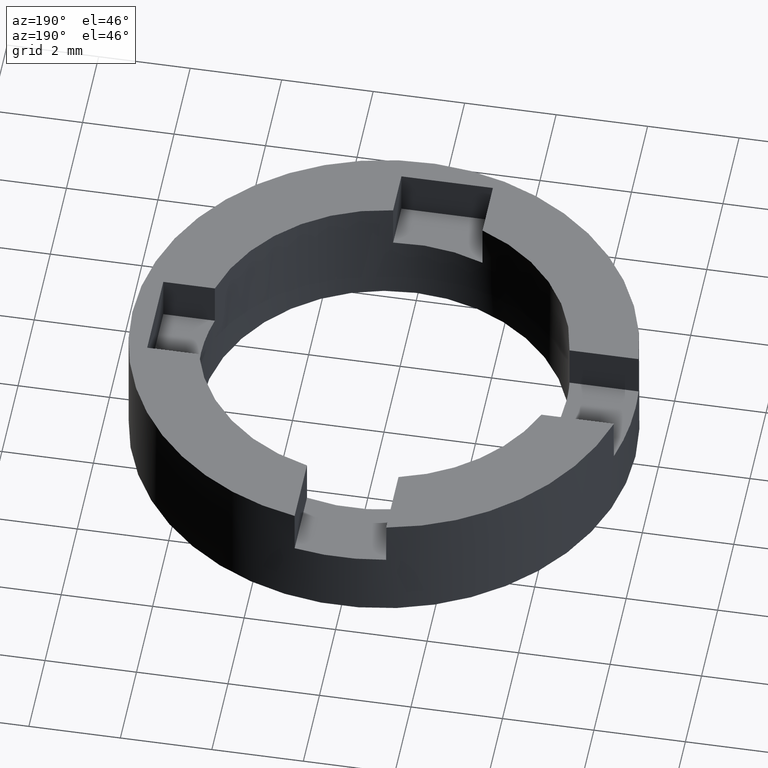
[diagram: clean part render]
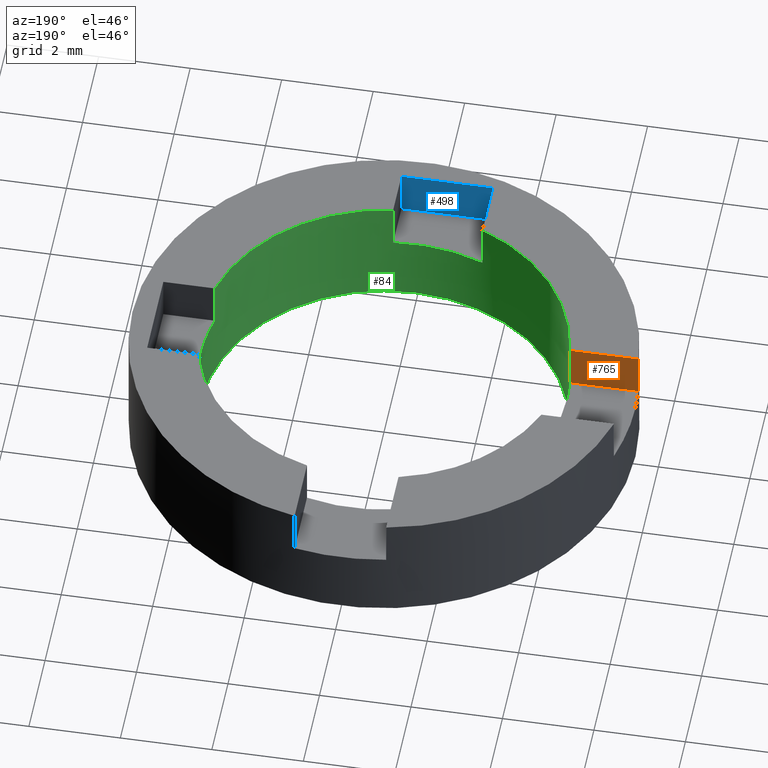
[diagram: same view with three faces highlighted in distinct colors, each labeled with its STEP entity id]
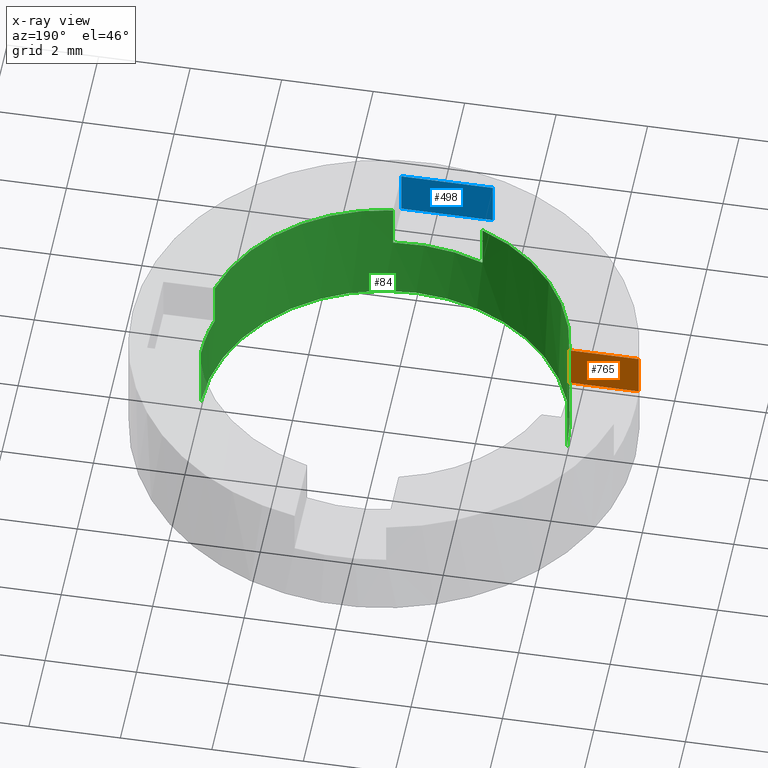
[diagram: x-ray of the same camera — body ghosted, the three highlighted faces saturated]
A machine part, auxiliary view with three faces highlighted in distinct colors.
The next image is the same camera in x-ray (body ghosted, the three faces saturated) — at least one of them is partly hidden behind the body in this view.
Their STEP definitions:

[orange] entity #765 — the highlighted planar face has unit normal (0, -1, 0).
#7 = LINE ( 'NONE', #28, #11 ) ;
#8 = ORIENTED_EDGE ( 'NONE', *, *, #112, .F. ) ;
#11 = VECTOR ( 'NONE', #257, 1000.000000000000000 ) ;
#13 = LINE ( 'NONE', #204, #512 ) ;
#28 = CARTESIAN_POINT ( 'NONE',  ( -5.477225575051632767, -0.5000000000003046452, 2.500000000000000000 ) ) ;
#41 = CARTESIAN_POINT ( 'NONE',  ( -5.477225575051632767, -0.5000000000003046452, 1.500000000000000000 ) ) ;
#45 = ORIENTED_EDGE ( 'NONE', *, *, #296, .F. ) ;
#50 = AXIS2_PLACEMENT_3D ( 'NONE', #529, #214, #487 ) ;
#51 = CARTESIAN_POINT ( 'NONE',  ( -3.968626966596846994, -0.5000000000003044232, 2.500000000000000000 ) ) ;
#112 = EDGE_CURVE ( 'NONE', #243, #486, #7, .T. ) ;
#140 = EDGE_CURVE ( 'NONE', #243, #190, #13, .T. ) ;
#153 = LINE ( 'NONE', #51, #689 ) ;
#190 = VERTEX_POINT ( 'NONE', #423 ) ;
#204 = CARTESIAN_POINT ( 'NONE',  ( -3.305037895305851681, -0.5000000000003044232, 2.500000000000000000 ) ) ;
#212 = VERTEX_POINT ( 'NONE', #451 ) ;
#214 = DIRECTION ( 'NONE',  ( 1.481850875921982612E-16, -1.000000000000000000, 0.000000000000000000 ) ) ;
#243 = VERTEX_POINT ( 'NONE', #416 ) ;
#249 = EDGE_LOOP ( 'NONE', ( #450, #706, #45, #8 ) ) ;
#257 = DIRECTION ( 'NONE',  ( -0.000000000000000000, -0.000000000000000000, -1.000000000000000000 ) ) ;
#296 = EDGE_CURVE ( 'NONE', #486, #212, #365, .T. ) ;
#365 = LINE ( 'NONE', #712, #630 ) ;
#387 = EDGE_CURVE ( 'NONE', #190, #212, #153, .T. ) ;
#416 = CARTESIAN_POINT ( 'NONE',  ( -5.477225575051632767, -0.5000000000003046452, 2.500000000000000000 ) ) ;
#423 = CARTESIAN_POINT ( 'NONE',  ( -3.968626966596846994, -0.5000000000003044232, 2.500000000000000000 ) ) ;
#449 = FACE_OUTER_BOUND ( 'NONE', #249, .T. ) ;
#450 = ORIENTED_EDGE ( 'NONE', *, *, #140, .T. ) ;
#451 = CARTESIAN_POINT ( 'NONE',  ( -3.968626966596846994, -0.5000000000003044232, 1.500000000000000000 ) ) ;
#486 = VERTEX_POINT ( 'NONE', #41 ) ;
#487 = DIRECTION ( 'NONE',  ( 1.000000000000000000, 1.481850875921982612E-16, 0.000000000000000000 ) ) ;
#512 = VECTOR ( 'NONE', #777, 1000.000000000000000 ) ;
#529 = CARTESIAN_POINT ( 'NONE',  ( -3.305037895305851681, -0.5000000000003044232, 1.500000000000000000 ) ) ;
#617 = PLANE ( 'NONE',  #50 ) ;
#630 = VECTOR ( 'NONE', #661, 1000.000000000000000 ) ;
#661 = DIRECTION ( 'NONE',  ( 1.000000000000000000, 1.481850875921982612E-16, -0.000000000000000000 ) ) ;
#667 = DIRECTION ( 'NONE',  ( -0.000000000000000000, -0.000000000000000000, -1.000000000000000000 ) ) ;
#689 = VECTOR ( 'NONE', #667, 1000.000000000000000 ) ;
#706 = ORIENTED_EDGE ( 'NONE', *, *, #387, .T. ) ;
#712 = CARTESIAN_POINT ( 'NONE',  ( -3.305037895305851681, -0.5000000000003044232, 1.500000000000000000 ) ) ;
#765 = ADVANCED_FACE ( 'NONE', ( #449 ), #617, .F. ) ;
#777 = DIRECTION ( 'NONE',  ( 1.000000000000000000, 1.481850875921982612E-16, -0.000000000000000000 ) ) ;

[blue] entity #498 — the highlighted planar face has unit normal (0, -1, 0).
#71 = CARTESIAN_POINT ( 'NONE',  ( -1.499999999999649614, -5.000000000000257572, 2.500000000000000000 ) ) ;
#77 = EDGE_CURVE ( 'NONE', #195, #307, #79, .T. ) ;
#79 = LINE ( 'NONE', #655, #81 ) ;
#81 = VECTOR ( 'NONE', #547, 1000.000000000000000 ) ;
#93 = DIRECTION ( 'NONE',  ( 0.000000000000000000, -0.000000000000000000, -1.000000000000000000 ) ) ;
#116 = LINE ( 'NONE', #592, #117 ) ;
#117 = VECTOR ( 'NONE', #643, 1000.000000000000000 ) ;
#134 = PLANE ( 'NONE',  #318 ) ;
#139 = CARTESIAN_POINT ( 'NONE',  ( 0.5000000000003504974, -5.000000000000257572, 1.500000000000000000 ) ) ;
#159 = LINE ( 'NONE', #139, #695 ) ;
#192 = DIRECTION ( 'NONE',  ( 0.000000000000000000, -1.000000000000000000, 0.000000000000000000 ) ) ;
#195 = VERTEX_POINT ( 'NONE', #647 ) ;
#265 = CARTESIAN_POINT ( 'NONE',  ( 0.5000000000003504974, -5.000000000000257572, 1.500000000000000000 ) ) ;
#307 = VERTEX_POINT ( 'NONE', #71 ) ;
#316 = EDGE_CURVE ( 'NONE', #195, #553, #116, .T. ) ;
#318 = AXIS2_PLACEMENT_3D ( 'NONE', #665, #192, #93 ) ;
#328 = CARTESIAN_POINT ( 'NONE',  ( -1.499999999999649614, -5.000000000000257572, 2.500000000000000000 ) ) ;
#372 = DIRECTION ( 'NONE',  ( 1.000000000000000000, 0.000000000000000000, 0.000000000000000000 ) ) ;
#392 = EDGE_CURVE ( 'NONE', #307, #475, #405, .T. ) ;
#405 = LINE ( 'NONE', #328, #687 ) ;
#453 = EDGE_CURVE ( 'NONE', #553, #475, #159, .T. ) ;
#460 = EDGE_LOOP ( 'NONE', ( #717, #570, #748, #462 ) ) ;
#462 = ORIENTED_EDGE ( 'NONE', *, *, #77, .T. ) ;
#475 = VERTEX_POINT ( 'NONE', #577 ) ;
#498 = ADVANCED_FACE ( 'NONE', ( #696 ), #134, .F. ) ;
#547 = DIRECTION ( 'NONE',  ( -0.000000000000000000, -0.000000000000000000, 1.000000000000000000 ) ) ;
#553 = VERTEX_POINT ( 'NONE', #265 ) ;
#570 = ORIENTED_EDGE ( 'NONE', *, *, #453, .F. ) ;
#577 = CARTESIAN_POINT ( 'NONE',  ( 0.5000000000003504974, -5.000000000000257572, 2.500000000000000000 ) ) ;
#592 = CARTESIAN_POINT ( 'NONE',  ( -1.499999999999649614, -5.000000000000257572, 1.500000000000000000 ) ) ;
#643 = DIRECTION ( 'NONE',  ( 1.000000000000000000, 0.000000000000000000, 0.000000000000000000 ) ) ;
#647 = CARTESIAN_POINT ( 'NONE',  ( -1.499999999999649614, -5.000000000000257572, 1.500000000000000000 ) ) ;
#655 = CARTESIAN_POINT ( 'NONE',  ( -1.499999999999649614, -5.000000000000257572, 1.500000000000000000 ) ) ;
#665 = CARTESIAN_POINT ( 'NONE',  ( -1.499999999999649614, -5.000000000000257572, 1.500000000000000000 ) ) ;
#687 = VECTOR ( 'NONE', #372, 1000.000000000000000 ) ;
#695 = VECTOR ( 'NONE', #756, 1000.000000000000000 ) ;
#696 = FACE_OUTER_BOUND ( 'NONE', #460, .T. ) ;
#717 = ORIENTED_EDGE ( 'NONE', *, *, #392, .T. ) ;
#748 = ORIENTED_EDGE ( 'NONE', *, *, #316, .F. ) ;
#756 = DIRECTION ( 'NONE',  ( -0.000000000000000000, -0.000000000000000000, 1.000000000000000000 ) ) ;

[green] entity #84 — the highlighted cylindrical surface (partial cylindrical patch) has radius 4 mm, axis along (-0, -0, -1).
#1 = CARTESIAN_POINT ( 'NONE',  ( 0.5000000000003502754, -3.968626966596842109, 1.500000000000000000 ) ) ;
#6 = VERTEX_POINT ( 'NONE', #644 ) ;
#14 = DIRECTION ( 'NONE',  ( 0.000000000000000000, 0.000000000000000000, -1.000000000000000000 ) ) ;
#16 = CYLINDRICAL_SURFACE ( 'NONE', #267, 4.000000000000000000 ) ;
#29 = AXIS2_PLACEMENT_3D ( 'NONE', #327, #406, #573 ) ;
#31 = CARTESIAN_POINT ( 'NONE',  ( 3.872983346207428568, -0.9999999999999542588, 2.500000000000000000 ) ) ;
#35 = ORIENTED_EDGE ( 'NONE', *, *, #621, .F. ) ;
#48 = ORIENTED_EDGE ( 'NONE', *, *, #147, .F. ) ;
#51 = CARTESIAN_POINT ( 'NONE',  ( -3.968626966596846994, -0.5000000000003044232, 2.500000000000000000 ) ) ;
#73 = DIRECTION ( 'NONE',  ( 0.000000000000000000, 0.000000000000000000, 1.000000000000000000 ) ) ;
#84 = ADVANCED_FACE ( 'NONE', ( #518 ), #16, .F. ) ;
#85 = DIRECTION ( 'NONE',  ( -0.000000000000000000, -0.000000000000000000, -1.000000000000000000 ) ) ;
#86 = DIRECTION ( 'NONE',  ( 1.000000000000000000, 0.000000000000000000, 0.000000000000000000 ) ) ;
#102 = CARTESIAN_POINT ( 'NONE',  ( -1.499999999999649614, -3.708099243547972712, 2.500000000000000000 ) ) ;
#115 = EDGE_CURVE ( 'NONE', #508, #768, #252, .T. ) ;
#147 = EDGE_CURVE ( 'NONE', #768, #426, #247, .T. ) ;
#153 = LINE ( 'NONE', #51, #689 ) ;
#167 = VECTOR ( 'NONE', #527, 1000.000000000000000 ) ;
#168 = LINE ( 'NONE', #262, #713 ) ;
#178 = ORIENTED_EDGE ( 'NONE', *, *, #269, .T. ) ;
#187 = LINE ( 'NONE', #266, #167 ) ;
#190 = VERTEX_POINT ( 'NONE', #423 ) ;
#197 = ORIENTED_EDGE ( 'NONE', *, *, #583, .T. ) ;
#206 = VERTEX_POINT ( 'NONE', #341 ) ;
#212 = VERTEX_POINT ( 'NONE', #451 ) ;
#223 = EDGE_CURVE ( 'NONE', #448, #516, #463, .T. ) ;
#230 = VECTOR ( 'NONE', #640, 1000.000000000000000 ) ;
#247 = LINE ( 'NONE', #102, #710 ) ;
#252 = CIRCLE ( 'NONE', #506, 4.000000000000000000 ) ;
#254 = VERTEX_POINT ( 'NONE', #673 ) ;
#262 = CARTESIAN_POINT ( 'NONE',  ( -4.000000000000000000, 0.000000000000000000, 2.500000000000000000 ) ) ;
#266 = CARTESIAN_POINT ( 'NONE',  ( 3.872983346207428568, -0.9999999999999542588, 2.500000000000000000 ) ) ;
#267 = AXIS2_PLACEMENT_3D ( 'NONE', #610, #85, #613 ) ;
#268 = CARTESIAN_POINT ( 'NONE',  ( 3.872983346207428568, -0.9999999999999542588, 1.500000000000000000 ) ) ;
#269 = EDGE_CURVE ( 'NONE', #190, #426, #434, .T. ) ;
#271 = AXIS2_PLACEMENT_3D ( 'NONE', #324, #632, #579 ) ;
#288 = ORIENTED_EDGE ( 'NONE', *, *, #115, .F. ) ;
#293 = ORIENTED_EDGE ( 'NONE', *, *, #766, .F. ) ;
#298 = ORIENTED_EDGE ( 'NONE', *, *, #369, .F. ) ;
#312 = CARTESIAN_POINT ( 'NONE',  ( 0.000000000000000000, 0.000000000000000000, 2.500000000000000000 ) ) ;
#314 = ORIENTED_EDGE ( 'NONE', *, *, #371, .F. ) ;
#317 = DIRECTION ( 'NONE',  ( -1.000000000000000000, 0.000000000000000000, 0.000000000000000000 ) ) ;
#319 = AXIS2_PLACEMENT_3D ( 'NONE', #312, #354, #86 ) ;
#324 = CARTESIAN_POINT ( 'NONE',  ( 0.000000000000000000, 0.000000000000000000, 0.000000000000000000 ) ) ;
#327 = CARTESIAN_POINT ( 'NONE',  ( 0.000000000000000000, 0.000000000000000000, 2.500000000000000000 ) ) ;
#340 = CARTESIAN_POINT ( 'NONE',  ( -1.499999999999649614, -3.708099243547972712, 1.500000000000000000 ) ) ;
#341 = CARTESIAN_POINT ( 'NONE',  ( -4.000000000000000000, 0.000000000000000000, 0.000000000000000000 ) ) ;
#348 = DIRECTION ( 'NONE',  ( -1.000000000000000000, 0.000000000000000000, 0.000000000000000000 ) ) ;
#354 = DIRECTION ( 'NONE',  ( 0.000000000000000000, 0.000000000000000000, 1.000000000000000000 ) ) ;
#362 = CARTESIAN_POINT ( 'NONE',  ( 4.000000000000000000, 4.898587196589412829E-16, 2.500000000000000000 ) ) ;
#369 = EDGE_CURVE ( 'NONE', #206, #549, #700, .T. ) ;
#371 = EDGE_CURVE ( 'NONE', #516, #719, #187, .T. ) ;
#379 = DIRECTION ( 'NONE',  ( 0.000000000000000000, -0.000000000000000000, -1.000000000000000000 ) ) ;
#387 = EDGE_CURVE ( 'NONE', #190, #212, #153, .T. ) ;
#388 = EDGE_CURVE ( 'NONE', #6, #719, #711, .T. ) ;
#390 = CARTESIAN_POINT ( 'NONE',  ( 0.000000000000000000, 0.000000000000000000, 1.500000000000000000 ) ) ;
#396 = DIRECTION ( 'NONE',  ( -0.000000000000000000, -0.000000000000000000, -1.000000000000000000 ) ) ;
#398 = LINE ( 'NONE', #362, #417 ) ;
#399 = DIRECTION ( 'NONE',  ( -0.000000000000000000, -0.000000000000000000, -1.000000000000000000 ) ) ;
#406 = DIRECTION ( 'NONE',  ( 0.000000000000000000, 0.000000000000000000, 1.000000000000000000 ) ) ;
#417 = VECTOR ( 'NONE', #399, 1000.000000000000000 ) ;
#423 = CARTESIAN_POINT ( 'NONE',  ( -3.968626966596846994, -0.5000000000003044232, 2.500000000000000000 ) ) ;
#426 = VERTEX_POINT ( 'NONE', #637 ) ;
#428 = AXIS2_PLACEMENT_3D ( 'NONE', #542, #14, #530 ) ;
#434 = CIRCLE ( 'NONE', #319, 4.000000000000000000 ) ;
#443 = EDGE_CURVE ( 'NONE', #254, #206, #168, .T. ) ;
#448 = VERTEX_POINT ( 'NONE', #511 ) ;
#451 = CARTESIAN_POINT ( 'NONE',  ( -3.968626966596846994, -0.5000000000003044232, 1.500000000000000000 ) ) ;
#463 = CIRCLE ( 'NONE', #428, 4.000000000000000000 ) ;
#470 = LINE ( 'NONE', #593, #230 ) ;
#478 = ORIENTED_EDGE ( 'NONE', *, *, #443, .F. ) ;
#506 = AXIS2_PLACEMENT_3D ( 'NONE', #390, #607, #317 ) ;
#508 = VERTEX_POINT ( 'NONE', #1 ) ;
#511 = CARTESIAN_POINT ( 'NONE',  ( 4.000000000000000000, 4.898587196589412829E-16, 1.500000000000000000 ) ) ;
#515 = AXIS2_PLACEMENT_3D ( 'NONE', #681, #379, #348 ) ;
#516 = VERTEX_POINT ( 'NONE', #268 ) ;
#518 = FACE_OUTER_BOUND ( 'NONE', #519, .T. ) ;
#519 = EDGE_LOOP ( 'NONE', ( #569, #197, #298, #478, #35, #552, #178, #48, #288, #293, #750, #314 ) ) ;
#527 = DIRECTION ( 'NONE',  ( 0.000000000000000000, 0.000000000000000000, 1.000000000000000000 ) ) ;
#530 = DIRECTION ( 'NONE',  ( -1.000000000000000000, 0.000000000000000000, 0.000000000000000000 ) ) ;
#542 = CARTESIAN_POINT ( 'NONE',  ( 0.000000000000000000, 0.000000000000000000, 1.500000000000000000 ) ) ;
#549 = VERTEX_POINT ( 'NONE', #770 ) ;
#552 = ORIENTED_EDGE ( 'NONE', *, *, #387, .F. ) ;
#569 = ORIENTED_EDGE ( 'NONE', *, *, #223, .F. ) ;
#573 = DIRECTION ( 'NONE',  ( 1.000000000000000000, 0.000000000000000000, 0.000000000000000000 ) ) ;
#579 = DIRECTION ( 'NONE',  ( 1.000000000000000000, 0.000000000000000000, 0.000000000000000000 ) ) ;
#583 = EDGE_CURVE ( 'NONE', #448, #549, #398, .T. ) ;
#593 = CARTESIAN_POINT ( 'NONE',  ( 0.5000000000003502754, -3.968626966596842109, 2.500000000000000000 ) ) ;
#607 = DIRECTION ( 'NONE',  ( 0.000000000000000000, 0.000000000000000000, -1.000000000000000000 ) ) ;
#610 = CARTESIAN_POINT ( 'NONE',  ( 0.000000000000000000, 0.000000000000000000, 2.500000000000000000 ) ) ;
#613 = DIRECTION ( 'NONE',  ( -1.000000000000000000, 0.000000000000000000, 0.000000000000000000 ) ) ;
#621 = EDGE_CURVE ( 'NONE', #212, #254, #679, .T. ) ;
#632 = DIRECTION ( 'NONE',  ( 0.000000000000000000, 0.000000000000000000, 1.000000000000000000 ) ) ;
#637 = CARTESIAN_POINT ( 'NONE',  ( -1.499999999999649614, -3.708099243547972712, 2.500000000000000000 ) ) ;
#640 = DIRECTION ( 'NONE',  ( -0.000000000000000000, -0.000000000000000000, -1.000000000000000000 ) ) ;
#644 = CARTESIAN_POINT ( 'NONE',  ( 0.5000000000003502754, -3.968626966596842109, 2.500000000000000000 ) ) ;
#667 = DIRECTION ( 'NONE',  ( -0.000000000000000000, -0.000000000000000000, -1.000000000000000000 ) ) ;
#673 = CARTESIAN_POINT ( 'NONE',  ( -4.000000000000000000, 0.000000000000000000, 1.500000000000000000 ) ) ;
#679 = CIRCLE ( 'NONE', #515, 4.000000000000000000 ) ;
#681 = CARTESIAN_POINT ( 'NONE',  ( 0.000000000000000000, 0.000000000000000000, 1.500000000000000000 ) ) ;
#689 = VECTOR ( 'NONE', #667, 1000.000000000000000 ) ;
#700 = CIRCLE ( 'NONE', #271, 4.000000000000000000 ) ;
#710 = VECTOR ( 'NONE', #73, 1000.000000000000000 ) ;
#711 = CIRCLE ( 'NONE', #29, 4.000000000000000000 ) ;
#713 = VECTOR ( 'NONE', #396, 1000.000000000000000 ) ;
#719 = VERTEX_POINT ( 'NONE', #31 ) ;
#750 = ORIENTED_EDGE ( 'NONE', *, *, #388, .T. ) ;
#766 = EDGE_CURVE ( 'NONE', #6, #508, #470, .T. ) ;
#768 = VERTEX_POINT ( 'NONE', #340 ) ;
#770 = CARTESIAN_POINT ( 'NONE',  ( 4.000000000000000000, 4.898587196589412829E-16, 0.000000000000000000 ) ) ;